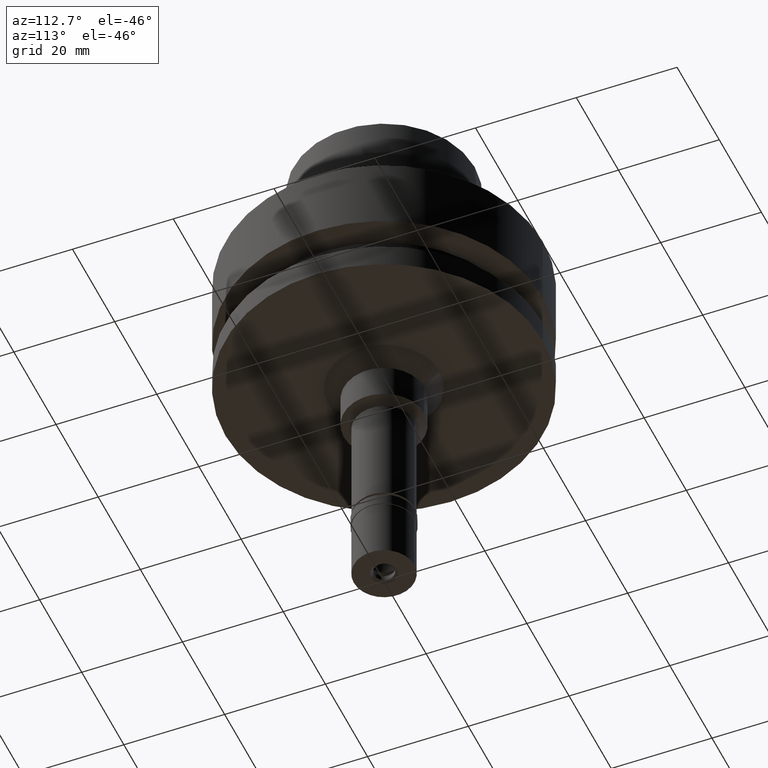
[diagram: clean part render]
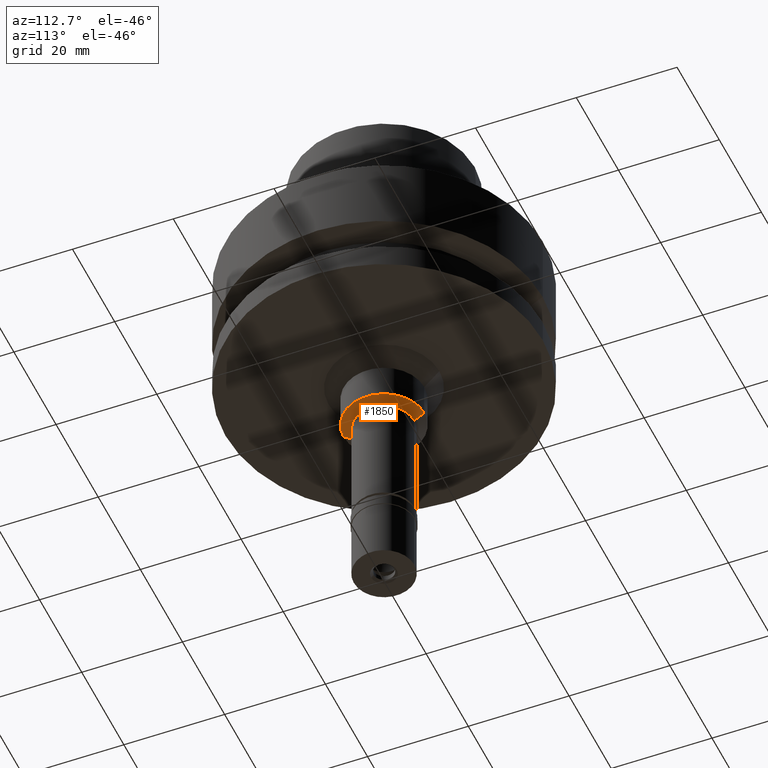
[diagram: same view with one face highlighted and labeled with its STEP entity id]
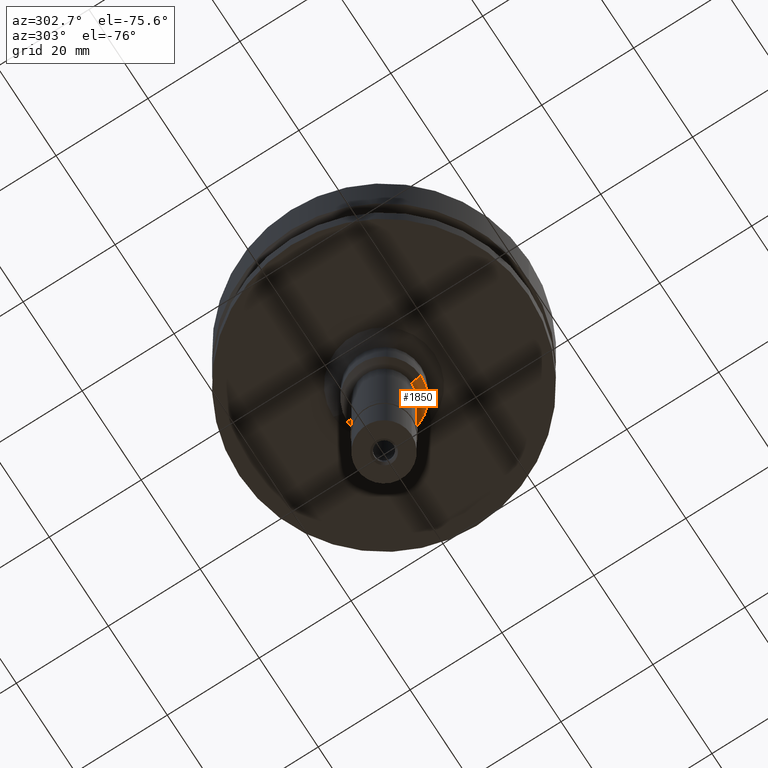
[diagram: same view with one face highlighted and labeled with its STEP entity id]
A machine part, auxiliary view. The second image highlights one B-rep face of the part: STEP entity #1850.
A second angle (auxiliary view) of the same face is appended — the face is thin or edge-on in the first view.
In plain terms, the highlighted conical surface has half-angle 60 deg.
Its self-contained STEP definition (entity closure, byte-faithful):
#25 = ORIENTED_EDGE ( 'NONE', *, *, #895, .F. ) ;
#46 = EDGE_CURVE ( 'NONE', #939, #2382, #623, .T. ) ;
#150 = DIRECTION ( 'NONE',  ( 0.0000000000000000000, 0.0000000000000000000, 1.000000000000000000 ) ) ;
#244 = LINE ( 'NONE', #1763, #2650 ) ;
#280 = LINE ( 'NONE', #1280, #2281 ) ;
#462 = DIRECTION ( 'NONE',  ( 0.0000000000000000000, 1.000000000000000000, 0.0000000000000000000 ) ) ;
#584 = CARTESIAN_POINT ( 'NONE',  ( 0.0000000000000000000, 0.0000000000000000000, -36.42264973080999368 ) ) ;
#623 = CIRCLE ( 'NONE', #2740, 6.000000000000000000 ) ;
#679 = CARTESIAN_POINT ( 'NONE',  ( 0.0000000000000000000, 0.0000000000000000000, -37.00000000000000000 ) ) ;
#790 = CARTESIAN_POINT ( 'NONE',  ( 0.0000000000000000000, -8.000000000000000000, -35.84529946162000158 ) ) ;
#810 = AXIS2_PLACEMENT_3D ( 'NONE', #584, #150, #1906 ) ;
#895 = EDGE_CURVE ( 'NONE', #2209, #939, #280, .T. ) ;
#939 = VERTEX_POINT ( 'NONE', #1525 ) ;
#987 = DIRECTION ( 'NONE',  ( 0.0000000000000000000, 0.0000000000000000000, 1.000000000000000000 ) ) ;
#1002 = CARTESIAN_POINT ( 'NONE',  ( 0.0000000000000000000, -6.000000000000000000, -37.00000000000000000 ) ) ;
#1020 = EDGE_CURVE ( 'NONE', #1229, #2382, #244, .T. ) ;
#1094 = CARTESIAN_POINT ( 'NONE',  ( 0.0000000000000000000, 8.000000000000000000, -35.84529946162000158 ) ) ;
#1200 = EDGE_CURVE ( 'NONE', #1229, #2209, #2601, .T. ) ;
#1229 = VERTEX_POINT ( 'NONE', #790 ) ;
#1280 = CARTESIAN_POINT ( 'NONE',  ( 0.0000000000000000000, 8.000000000000000000, -35.84529946162000158 ) ) ;
#1524 = DIRECTION ( 'NONE',  ( 0.0000000000000000000, 0.0000000000000000000, -1.000000000000000000 ) ) ;
#1525 = CARTESIAN_POINT ( 'NONE',  ( 0.0000000000000000000, 6.000000000000000000, -37.00000000000000000 ) ) ;
#1622 = ORIENTED_EDGE ( 'NONE', *, *, #1200, .F. ) ;
#1629 = DIRECTION ( 'NONE',  ( 0.0000000000000000000, -1.000000000000000000, 0.0000000000000000000 ) ) ;
#1634 = EDGE_LOOP ( 'NONE', ( #1622, #2047, #1674, #25 ) ) ;
#1674 = ORIENTED_EDGE ( 'NONE', *, *, #46, .F. ) ;
#1763 = CARTESIAN_POINT ( 'NONE',  ( 0.0000000000000000000, -8.000000000000000000, -35.84529946162000158 ) ) ;
#1850 = ADVANCED_FACE ( 'NONE', ( #1861 ), #2149, .T. ) ;
#1861 = FACE_OUTER_BOUND ( 'NONE', #1634, .T. ) ;
#1906 = DIRECTION ( 'NONE',  ( 0.0000000000000000000, 1.000000000000000000, 0.0000000000000000000 ) ) ;
#2047 = ORIENTED_EDGE ( 'NONE', *, *, #1020, .T. ) ;
#2074 = CARTESIAN_POINT ( 'NONE',  ( 0.0000000000000000000, 0.0000000000000000000, -35.84529946162000158 ) ) ;
#2094 = AXIS2_PLACEMENT_3D ( 'NONE', #2074, #987, #1629 ) ;
#2149 = CONICAL_SURFACE ( 'NONE', #810, 7.000000000000000000, 1.047197551196400456 ) ;
#2209 = VERTEX_POINT ( 'NONE', #1094 ) ;
#2281 = VECTOR ( 'NONE', #2392, 1000.000000000000000 ) ;
#2382 = VERTEX_POINT ( 'NONE', #1002 ) ;
#2392 = DIRECTION ( 'NONE',  ( 0.0000000000000000000, -0.8660254037843856390, -0.5000000000000918154 ) ) ;
#2601 = CIRCLE ( 'NONE', #2094, 8.000000000000000000 ) ;
#2636 = DIRECTION ( 'NONE',  ( 0.0000000000000000000, 0.8660254037843856390, -0.5000000000000918154 ) ) ;
#2650 = VECTOR ( 'NONE', #2636, 1000.000000000000000 ) ;
#2740 = AXIS2_PLACEMENT_3D ( 'NONE', #679, #1524, #462 ) ;